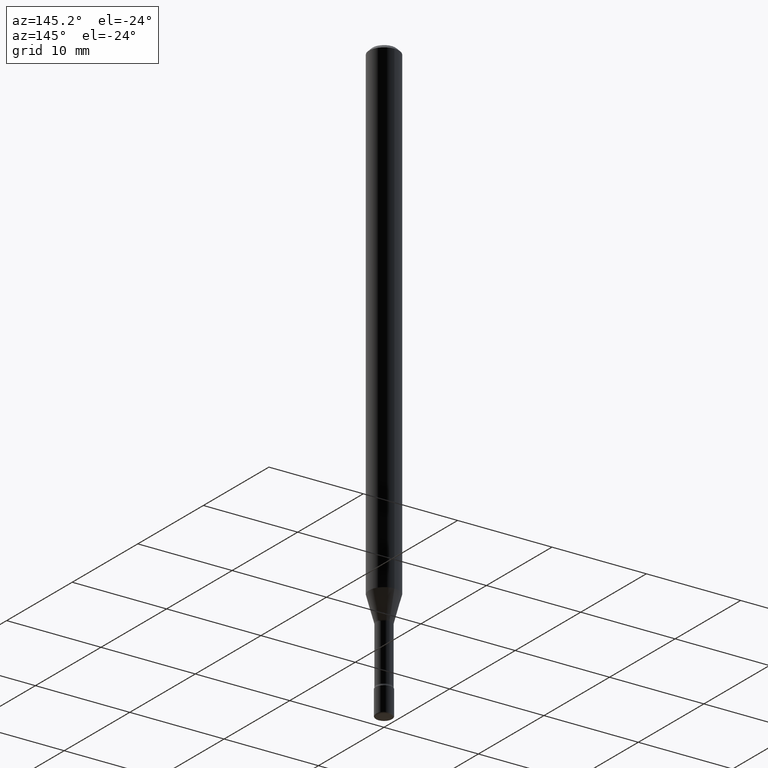
[diagram: clean part render]
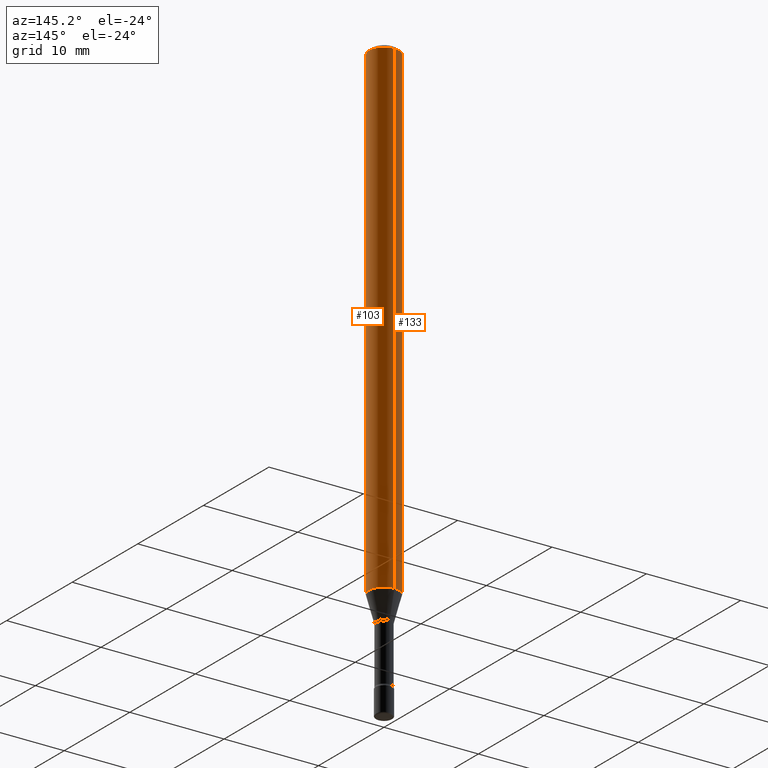
[diagram: same view with one multi-face feature highlighted, each face labeled with its STEP entity id]
A machine part, auxiliary view. The highlighted faces form ONE feature: a constant-radius fillet chain: 2 tangent blend faces with common blend radius 1.5875 mm. The faces share edges in the B-rep.
Their STEP definitions:
[1] entity #103 (Cylinder):
#6 = DIRECTION ( 'NONE',  ( -6.982962677686265922E-15, -1.000000000000000000, 3.483106191921935554E-15 ) ) ;
#40 = EDGE_LOOP ( 'NONE', ( #350, #376, #305, #213 ) ) ;
#66 = VERTEX_POINT ( 'NONE', #92 ) ;
#84 = EDGE_CURVE ( 'NONE', #551, #99, #101, .T. ) ;
#89 = VECTOR ( 'NONE', #445, 39.37007874015748143 ) ;
#92 = CARTESIAN_POINT ( 'NONE',  ( -4.364351673553912750E-16, -0.06250000000000005551, -0.01499999999999981036 ) ) ;
#99 = VERTEX_POINT ( 'NONE', #192 ) ;
#100 = CARTESIAN_POINT ( 'NONE',  ( -4.364351673553419219E-16, -0.06250000000000714706, -2.039531296095961732 ) ) ;
#101 = CIRCLE ( 'NONE', #131, 0.06250000000000000000 ) ;
#103 = ADVANCED_FACE ( 'NONE', ( #521 ), #355, .T. ) ;
#131 = AXIS2_PLACEMENT_3D ( 'NONE', #385, #561, #178 ) ;
#136 = LINE ( 'NONE', #233, #89 ) ;
#159 = AXIS2_PLACEMENT_3D ( 'NONE', #369, #540, #417 ) ;
#178 = DIRECTION ( 'NONE',  ( -6.982962677686265922E-15, -1.000000000000000000, 4.370956789862821150E-15 ) ) ;
#192 = CARTESIAN_POINT ( 'NONE',  ( 4.440892098501122158E-16, 0.06249999999999284600, -2.039531296095962176 ) ) ;
#202 = CIRCLE ( 'NONE', #519, 0.06250000000000000000 ) ;
#207 = EDGE_CURVE ( 'NONE', #99, #339, #320, .T. ) ;
#213 = ORIENTED_EDGE ( 'NONE', *, *, #489, .F. ) ;
#233 = CARTESIAN_POINT ( 'NONE',  ( -4.364351673553916201E-16, -0.06250000000000000000, 6.963005484091270833E-16 ) ) ;
#273 = CARTESIAN_POINT ( 'NONE',  ( 3.668042894305739311E-31, -5.237451588429154292E-17, -0.01500000000000002720 ) ) ;
#305 = ORIENTED_EDGE ( 'NONE', *, *, #448, .F. ) ;
#311 = DIRECTION ( 'NONE',  ( -2.445361929537154917E-29, 3.491634392286096321E-15, 1.000000000000000000 ) ) ;
#320 = LINE ( 'NONE', #550, #465 ) ;
#339 = VERTEX_POINT ( 'NONE', #518 ) ;
#350 = ORIENTED_EDGE ( 'NONE', *, *, #84, .T. ) ;
#355 = CYLINDRICAL_SURFACE ( 'NONE', #159, 0.06250000000000000000 ) ;
#369 = CARTESIAN_POINT ( 'NONE',  ( -1.169113584055446105E-44, 1.669184350826100908E-30, 4.780733988912460139E-16 ) ) ;
#376 = ORIENTED_EDGE ( 'NONE', *, *, #207, .T. ) ;
#378 = DIRECTION ( 'NONE',  ( -2.445361929537154917E-29, 3.491634392286096321E-15, 1.000000000000000000 ) ) ;
#385 = CARTESIAN_POINT ( 'NONE',  ( 4.987392185572635423E-29, -7.121297617592497891E-15, -2.039531296095961732 ) ) ;
#417 = DIRECTION ( 'NONE',  ( -6.982962677686265922E-15, -1.000000000000000000, 3.491634392286095926E-15 ) ) ;
#445 = DIRECTION ( 'NONE',  ( -2.445361929537154917E-29, 3.491634392286096321E-15, 1.000000000000000000 ) ) ;
#448 = EDGE_CURVE ( 'NONE', #66, #339, #202, .T. ) ;
#465 = VECTOR ( 'NONE', #378, 39.37007874015748143 ) ;
#489 = EDGE_CURVE ( 'NONE', #551, #66, #136, .T. ) ;
#518 = CARTESIAN_POINT ( 'NONE',  ( 4.440892098501128074E-16, 0.06249999999999995837, -0.01500000000000024578 ) ) ;
#519 = AXIS2_PLACEMENT_3D ( 'NONE', #273, #311, #6 ) ;
#521 = FACE_OUTER_BOUND ( 'NONE', #40, .T. ) ;
#540 = DIRECTION ( 'NONE',  ( -2.445361929537154917E-29, 3.491634392286096321E-15, 1.000000000000000000 ) ) ;
#550 = CARTESIAN_POINT ( 'NONE',  ( 4.440892098500625669E-16, 0.06250000000000000000, 2.598462493733650432E-16 ) ) ;
#551 = VERTEX_POINT ( 'NONE', #100 ) ;
#561 = DIRECTION ( 'NONE',  ( -2.445361929537154917E-29, 3.491634392286096321E-15, 1.000000000000000000 ) ) ;
[2] entity #133 (Cylinder):
#53 = DIRECTION ( 'NONE',  ( -6.982962677686265922E-15, -1.000000000000000000, 3.491634392286095926E-15 ) ) ;
#66 = VERTEX_POINT ( 'NONE', #92 ) ;
#89 = VECTOR ( 'NONE', #445, 39.37007874015748143 ) ;
#92 = CARTESIAN_POINT ( 'NONE',  ( -4.364351673553912750E-16, -0.06250000000000005551, -0.01499999999999981036 ) ) ;
#93 = ORIENTED_EDGE ( 'NONE', *, *, #538, .F. ) ;
#95 = CYLINDRICAL_SURFACE ( 'NONE', #527, 0.06250000000000000000 ) ;
#96 = ORIENTED_EDGE ( 'NONE', *, *, #303, .T. ) ;
#99 = VERTEX_POINT ( 'NONE', #192 ) ;
#100 = CARTESIAN_POINT ( 'NONE',  ( -4.364351673553419219E-16, -0.06250000000000714706, -2.039531296095961732 ) ) ;
#133 = ADVANCED_FACE ( 'NONE', ( #183 ), #95, .T. ) ;
#136 = LINE ( 'NONE', #233, #89 ) ;
#139 = CIRCLE ( 'NONE', #453, 0.06250000000000000000 ) ;
#183 = FACE_OUTER_BOUND ( 'NONE', #329, .T. ) ;
#184 = DIRECTION ( 'NONE',  ( -2.445361929537154917E-29, 3.491634392286096321E-15, 1.000000000000000000 ) ) ;
#192 = CARTESIAN_POINT ( 'NONE',  ( 4.440892098501122158E-16, 0.06249999999999284600, -2.039531296095962176 ) ) ;
#207 = EDGE_CURVE ( 'NONE', #99, #339, #320, .T. ) ;
#233 = CARTESIAN_POINT ( 'NONE',  ( -4.364351673553916201E-16, -0.06250000000000000000, 6.963005484091270833E-16 ) ) ;
#277 = CARTESIAN_POINT ( 'NONE',  ( -1.169113584055446105E-44, 1.669184350826100908E-30, 4.780733988912460139E-16 ) ) ;
#303 = EDGE_CURVE ( 'NONE', #99, #551, #139, .T. ) ;
#312 = CARTESIAN_POINT ( 'NONE',  ( 3.668042894305739311E-31, -5.237451588429154292E-17, -0.01500000000000002720 ) ) ;
#320 = LINE ( 'NONE', #550, #465 ) ;
#329 = EDGE_LOOP ( 'NONE', ( #348, #96, #425, #93 ) ) ;
#334 = CIRCLE ( 'NONE', #367, 0.06250000000000000000 ) ;
#338 = CARTESIAN_POINT ( 'NONE',  ( 4.987392185572635423E-29, -7.121297617592497891E-15, -2.039531296095961732 ) ) ;
#339 = VERTEX_POINT ( 'NONE', #518 ) ;
#346 = DIRECTION ( 'NONE',  ( -6.982962677686265922E-15, -1.000000000000000000, 3.483106191921935554E-15 ) ) ;
#348 = ORIENTED_EDGE ( 'NONE', *, *, #207, .F. ) ;
#362 = DIRECTION ( 'NONE',  ( -2.445361929537154917E-29, 3.491634392286096321E-15, 1.000000000000000000 ) ) ;
#367 = AXIS2_PLACEMENT_3D ( 'NONE', #312, #184, #346 ) ;
#378 = DIRECTION ( 'NONE',  ( -2.445361929537154917E-29, 3.491634392286096321E-15, 1.000000000000000000 ) ) ;
#384 = DIRECTION ( 'NONE',  ( -6.982962677686265922E-15, -1.000000000000000000, 4.370956789862821150E-15 ) ) ;
#387 = DIRECTION ( 'NONE',  ( -2.445361929537154917E-29, 3.491634392286096321E-15, 1.000000000000000000 ) ) ;
#425 = ORIENTED_EDGE ( 'NONE', *, *, #489, .T. ) ;
#445 = DIRECTION ( 'NONE',  ( -2.445361929537154917E-29, 3.491634392286096321E-15, 1.000000000000000000 ) ) ;
#453 = AXIS2_PLACEMENT_3D ( 'NONE', #338, #387, #384 ) ;
#465 = VECTOR ( 'NONE', #378, 39.37007874015748143 ) ;
#489 = EDGE_CURVE ( 'NONE', #551, #66, #136, .T. ) ;
#518 = CARTESIAN_POINT ( 'NONE',  ( 4.440892098501128074E-16, 0.06249999999999995837, -0.01500000000000024578 ) ) ;
#527 = AXIS2_PLACEMENT_3D ( 'NONE', #277, #362, #53 ) ;
#538 = EDGE_CURVE ( 'NONE', #339, #66, #334, .T. ) ;
#550 = CARTESIAN_POINT ( 'NONE',  ( 4.440892098500625669E-16, 0.06250000000000000000, 2.598462493733650432E-16 ) ) ;
#551 = VERTEX_POINT ( 'NONE', #100 ) ;